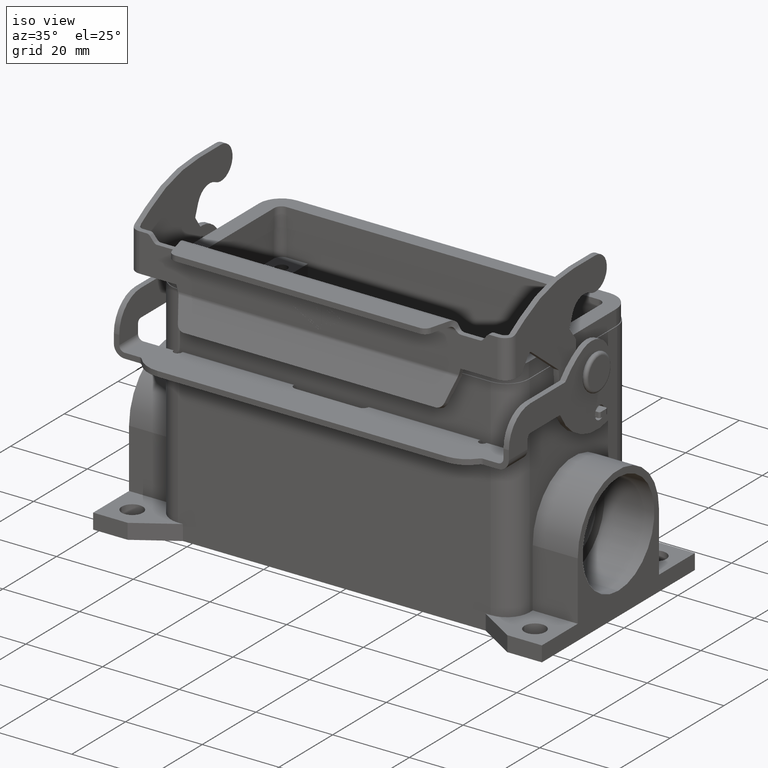
[diagram: clean part render]
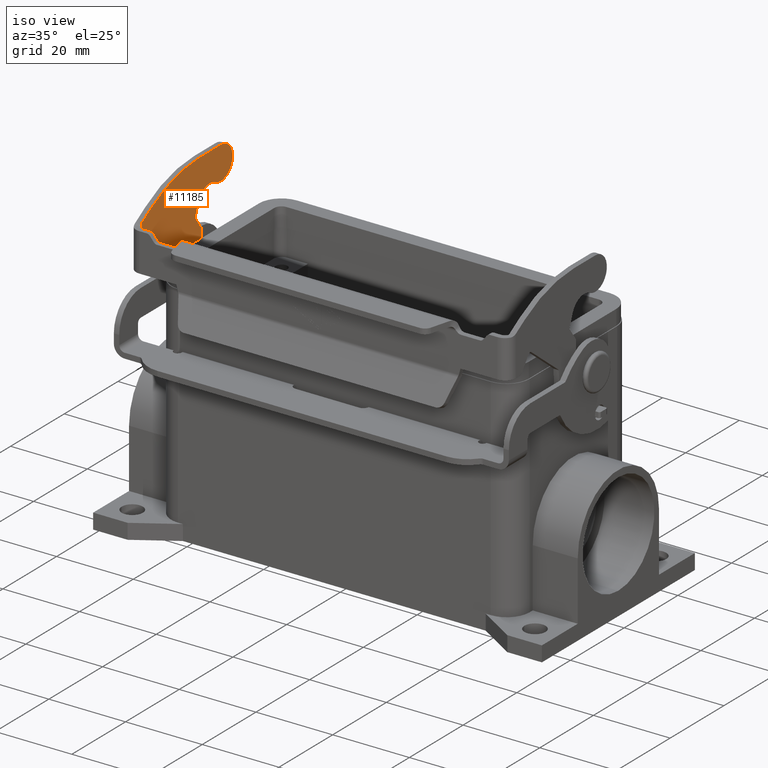
[diagram: same view with one face highlighted and labeled with its STEP entity id]
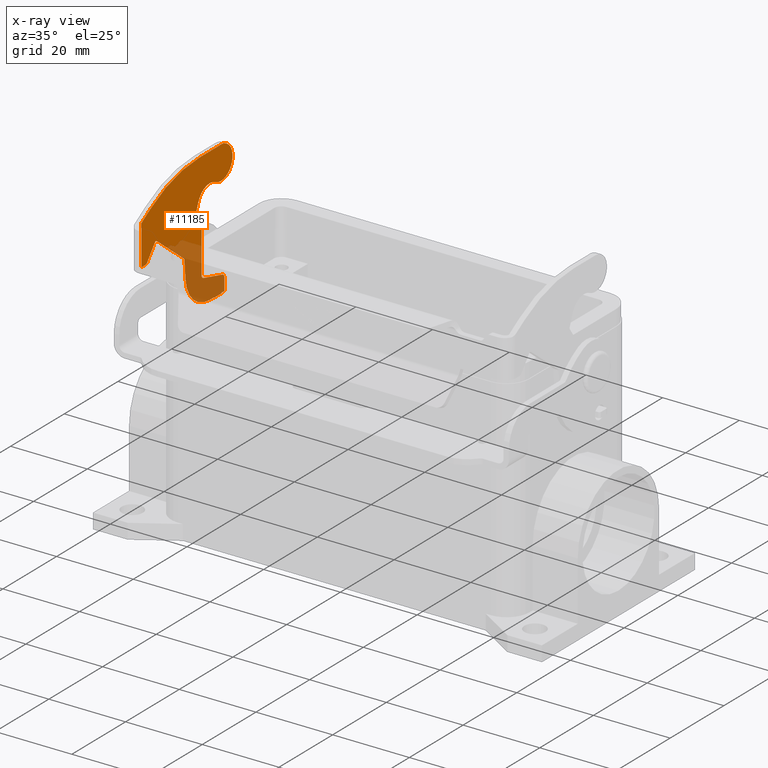
[diagram: x-ray of the same camera — body ghosted, the highlighted face saturated]
A machine part, iso view. The second image highlights one B-rep face of the part: STEP entity #11185.
The next image is the same camera in x-ray: the body ghosted, the highlighted face saturated — about 25% of this face is hidden behind the body in this view.
In plain terms, the highlighted planar face has unit normal (1, 0, 0).
Its self-contained STEP definition (entity closure, byte-faithful):
#8750=CARTESIAN_POINT('',(-48.100000000000009,6.342010229414635,24.462500000000006));
#8751=VERTEX_POINT('',#8750);
#8760=CARTESIAN_POINT('',(-48.100000000000016,2.178553132241669,16.937500000000000));
#8761=VERTEX_POINT('',#8760);
#8762=CARTESIAN_POINT('',(-48.100000000000009,4.260281680828153,20.700000000000003));
#8763=DIRECTION('',(-1.000000000000000,0.0,0.0));
#8764=DIRECTION('',(0.0,-0.484122918275926,-0.875000000000000));
#8765=AXIS2_PLACEMENT_3D('',#8762,#8763,#8764);
#8766=CIRCLE('',#8765,4.299999999999999);
#8767=EDGE_CURVE('',#8751,#8761,#8766,.T.);
#10685=CARTESIAN_POINT('',(-48.100000000000009,4.500000000000000,-10.137654915007420));
#10686=VERTEX_POINT('',#10685);
#10694=CARTESIAN_POINT('',(-48.100000000000009,1.600000000000001,-10.137654915007426));
#10695=VERTEX_POINT('',#10694);
#10696=CARTESIAN_POINT('',(-48.100000000000009,1.600000000000001,-10.137654915007426));
#10697=DIRECTION('',(0.0,1.0,0.0));
#10698=VECTOR('',#10697,2.900000000000000);
#10699=LINE('',#10696,#10698);
#10700=EDGE_CURVE('',#10695,#10686,#10699,.T.);
#10953=CARTESIAN_POINT('',(-48.100000000000016,-29.717557851726738,9.745694900991392));
#10954=DIRECTION('',(1.0,0.0,0.0));
#10955=DIRECTION('',(0.0,0.0,-1.0));
#10956=AXIS2_PLACEMENT_3D('',#10953,#10954,#10955);
#10957=PLANE('',#10956);
#10958=ORIENTED_EDGE('',*,*,#10700,.T.);
#10959=CARTESIAN_POINT('',(-48.100000000000016,4.500000000000000,-10.0));
#10960=VERTEX_POINT('',#10959);
#10961=CARTESIAN_POINT('',(-48.100000000000016,4.500000000000000,-10.0));
#10962=DIRECTION('',(0.0,0.0,-1.0));
#10963=VECTOR('',#10962,0.137654915007420);
#10964=LINE('',#10961,#10963);
#10965=EDGE_CURVE('',#10960,#10686,#10964,.T.);
#10966=ORIENTED_EDGE('',*,*,#10965,.F.);
#10967=CARTESIAN_POINT('',(-48.100000000000016,5.300000000000001,-10.0));
#10968=VERTEX_POINT('',#10967);
#10969=CARTESIAN_POINT('',(-48.100000000000016,5.300000000000001,-10.0));
#10970=DIRECTION('',(0.0,-1.0,0.0));
#10971=VECTOR('',#10970,0.800000000000001);
#10972=LINE('',#10969,#10971);
#10973=EDGE_CURVE('',#10968,#10960,#10972,.T.);
#10974=ORIENTED_EDGE('',*,*,#10973,.F.);
#10975=CARTESIAN_POINT('',(-48.100000000000016,5.500000000000000,-9.800000000000001));
#10976=VERTEX_POINT('',#10975);
#10977=CARTESIAN_POINT('',(-48.100000000000009,5.299999999999999,-9.799999999999999));
#10978=DIRECTION('',(-1.0,0.0,0.0));
#10979=DIRECTION('',(0.0,0.0,-1.0));
#10980=AXIS2_PLACEMENT_3D('',#10977,#10978,#10979);
#10981=CIRCLE('',#10980,0.200000000000001);
#10982=EDGE_CURVE('',#10976,#10968,#10981,.T.);
#10983=ORIENTED_EDGE('',*,*,#10982,.F.);
#10984=CARTESIAN_POINT('',(-48.100000000000016,5.500000000000002,-6.812222111622458));
#10985=VERTEX_POINT('',#10984);
#10986=CARTESIAN_POINT('',(-48.100000000000016,5.500000000000002,-6.812222111622458));
#10987=DIRECTION('',(0.0,0.0,-1.0));
#10988=VECTOR('',#10987,2.987777888377543);
#10989=LINE('',#10986,#10988);
#10990=EDGE_CURVE('',#10985,#10976,#10989,.T.);
#10991=ORIENTED_EDGE('',*,*,#10990,.F.);
#10992=CARTESIAN_POINT('',(-48.100000000000016,4.758819045102520,-5.846296285333391));
#10993=VERTEX_POINT('',#10992);
#10994=CARTESIAN_POINT('',(-48.100000000000009,4.500000000000001,-6.812222111622458));
#10995=DIRECTION('',(-1.0,0.0,0.0));
#10996=DIRECTION('',(0.0,1.0,0.0));
#10997=AXIS2_PLACEMENT_3D('',#10994,#10995,#10996);
#10998=CIRCLE('',#10997,1.0);
#10999=EDGE_CURVE('',#10993,#10985,#10998,.T.);
#11000=ORIENTED_EDGE('',*,*,#10999,.F.);
#11001=CARTESIAN_POINT('',(-48.100000000000016,-2.258819045102521,-3.965925826289068));
#11002=VERTEX_POINT('',#11001);
#11003=CARTESIAN_POINT('',(-48.100000000000016,-2.258819045102521,-3.965925826289068));
#11004=DIRECTION('',(0.0,0.965925826289068,-0.258819045102520));
#11005=VECTOR('',#11004,7.265193557527783);
#11006=LINE('',#11003,#11005);
#11007=EDGE_CURVE('',#11002,#10993,#11006,.T.);
#11008=ORIENTED_EDGE('',*,*,#11007,.F.);
#11009=CARTESIAN_POINT('',(-48.100000000000016,-3.000000000000000,-2.999999999999998));
#11010=VERTEX_POINT('',#11009);
#11011=CARTESIAN_POINT('',(-48.100000000000009,-2.000000000000000,-2.999999999999998));
#11012=DIRECTION('',(1.0,0.0,0.0));
#11013=DIRECTION('',(0.0,1.0,0.0));
#11014=AXIS2_PLACEMENT_3D('',#11011,#11012,#11013);
#11015=CIRCLE('',#11014,1.0);
#11016=EDGE_CURVE('',#11010,#11002,#11015,.T.);
#11017=ORIENTED_EDGE('',*,*,#11016,.F.);
#11018=CARTESIAN_POINT('',(-48.100000000000016,-3.000000000000000,8.0));
#11019=VERTEX_POINT('',#11018);
#11020=CARTESIAN_POINT('',(-48.100000000000016,-3.000000000000000,8.0));
#11021=DIRECTION('',(0.0,0.0,-1.0));
#11022=VECTOR('',#11021,10.999999999999998);
#11023=LINE('',#11020,#11022);
#11024=EDGE_CURVE('',#11019,#11010,#11023,.T.);
#11025=ORIENTED_EDGE('',*,*,#11024,.F.);
#11026=CARTESIAN_POINT('',(-48.100000000000016,-5.228877936336266,11.215134530698654));
#11027=VERTEX_POINT('',#11026);
#11028=CARTESIAN_POINT('',(-48.100000000000016,-5.228877936336266,11.215134530698654));
#11029=DIRECTION('',(0.0,0.569730938602697,-0.821831282927883));
#11030=VECTOR('',#11029,3.912158854849514);
#11031=LINE('',#11028,#11030);
#11032=EDGE_CURVE('',#11027,#11019,#11031,.T.);
#11033=ORIENTED_EDGE('',*,*,#11032,.F.);
#11034=CARTESIAN_POINT('',(-48.100000000000016,-5.287001955669658,11.673210267014177));
#11035=VERTEX_POINT('',#11034);
#11036=CARTESIAN_POINT('',(-48.100000000000009,-4.817962294872324,11.500000000000004));
#11037=DIRECTION('',(1.0,0.0,0.0));
#11038=DIRECTION('',(0.0,0.938079321594669,-0.346420534028349));
#11039=AXIS2_PLACEMENT_3D('',#11036,#11037,#11038);
#11040=CIRCLE('',#11039,0.500000000000000);
#11041=EDGE_CURVE('',#11035,#11027,#11040,.T.);
#11042=ORIENTED_EDGE('',*,*,#11041,.F.);
#11043=CARTESIAN_POINT('',(-48.100000000000016,-4.221356947176012,14.558892403127569));
#11044=VERTEX_POINT('',#11043);
#11045=CARTESIAN_POINT('',(-48.100000000000016,-4.221356947176012,14.558892403127569));
#11046=DIRECTION('',(0.0,-0.346420534028348,-0.938079321594669));
#11047=VECTOR('',#11046,3.076160053510118);
#11048=LINE('',#11045,#11047);
#11049=EDGE_CURVE('',#11044,#11035,#11048,.T.);
#11050=ORIENTED_EDGE('',*,*,#11049,.F.);
#11051=CARTESIAN_POINT('',(-48.100000000000009,0.0,13.0));
#11052=DIRECTION('',(1.000000000000000,0.0,0.0));
#11053=DIRECTION('',(0.0,-0.484122918275927,-0.875000000000000));
#11054=AXIS2_PLACEMENT_3D('',#11051,#11052,#11053);
#11055=CIRCLE('',#11054,4.500000000000000);
#11056=EDGE_CURVE('',#8761,#11044,#11055,.T.);
#11057=ORIENTED_EDGE('',*,*,#11056,.F.);
#11058=ORIENTED_EDGE('',*,*,#8767,.F.);
#11059=CARTESIAN_POINT('',(-48.100000000000016,4.260281680828153,25.000000000000007));
#11060=VERTEX_POINT('',#11059);
#11061=CARTESIAN_POINT('',(-48.100000000000009,4.260281680828153,20.700000000000003));
#11062=DIRECTION('',(-1.000000000000000,0.0,0.0));
#11063=DIRECTION('',(0.0,-0.484122918275926,-0.875000000000000));
#11064=AXIS2_PLACEMENT_3D('',#11061,#11062,#11063);
#11065=CIRCLE('',#11064,4.299999999999999);
#11066=EDGE_CURVE('',#11060,#8751,#11065,.T.);
#11067=ORIENTED_EDGE('',*,*,#11066,.F.);
#11068=CARTESIAN_POINT('',(-48.100000000000016,-3.739718319171848,25.000000000000007));
#11069=VERTEX_POINT('',#11068);
#11070=CARTESIAN_POINT('',(-48.100000000000016,-3.739718319171848,25.000000000000007));
#11071=DIRECTION('',(0.0,1.0,0.0));
#11072=VECTOR('',#11071,8.0);
#11073=LINE('',#11070,#11072);
#11074=EDGE_CURVE('',#11069,#11060,#11073,.T.);
#11075=ORIENTED_EDGE('',*,*,#11074,.F.);
#11076=CARTESIAN_POINT('',(-48.100000000000016,-22.025445526428999,19.843461268790108));
#11077=VERTEX_POINT('',#11076);
#11078=CARTESIAN_POINT('',(-48.100000000000009,-3.739718319171848,-9.999999999999996));
#11079=DIRECTION('',(-1.0,0.0,0.0));
#11080=DIRECTION('',(0.0,0.0,1.0));
#11081=AXIS2_PLACEMENT_3D('',#11078,#11079,#11080);
#11082=CIRCLE('',#11081,35.0);
#11083=EDGE_CURVE('',#11077,#11069,#11082,.T.);
#11084=ORIENTED_EDGE('',*,*,#11083,.F.);
#11085=CARTESIAN_POINT('',(-48.100000000000009,-25.366637302590753,17.796241584191456));
#11086=VERTEX_POINT('',#11085);
#11087=CARTESIAN_POINT('',(-48.100000000000009,-25.366637302590753,17.796241584191456));
#11088=DIRECTION('',(-1.813301E-015,0.852670321965433,0.522449348778774));
#11089=VECTOR('',#11088,3.918503658553752);
#11090=LINE('',#11087,#11089);
#11091=EDGE_CURVE('',#11086,#11077,#11090,.T.);
#11092=ORIENTED_EDGE('',*,*,#11091,.F.);
#11093=CARTESIAN_POINT('',(-48.100000000000009,-25.366637302590746,7.360985334995052));
#11094=VERTEX_POINT('',#11093);
#11095=CARTESIAN_POINT('',(-48.100000000000009,-25.366637302590753,17.796241584191456));
#11096=DIRECTION('',(0.0,0.0,-1.0));
#11097=VECTOR('',#11096,10.435256249196405);
#11098=LINE('',#11095,#11097);
#11099=EDGE_CURVE('',#11086,#11094,#11098,.T.);
#11100=ORIENTED_EDGE('',*,*,#11099,.T.);
#11101=CARTESIAN_POINT('',(-48.100000000000016,-24.000000000000004,7.360985334995052));
#11102=VERTEX_POINT('',#11101);
#11103=CARTESIAN_POINT('',(-48.100000000000016,-24.000000000000004,7.360985334995052));
#11104=DIRECTION('',(0.0,-1.0,0.0));
#11105=VECTOR('',#11104,1.366637302590743);
#11106=LINE('',#11103,#11105);
#11107=EDGE_CURVE('',#11102,#11094,#11106,.T.);
#11108=ORIENTED_EDGE('',*,*,#11107,.F.);
#11109=CARTESIAN_POINT('',(-48.100000000000016,-23.215700473814319,7.740602990609832));
#11110=VERTEX_POINT('',#11109);
#11111=CARTESIAN_POINT('',(-48.100000000000009,-24.000000000000004,8.360985334995053));
#11112=DIRECTION('',(-1.0,0.0,0.0));
#11113=DIRECTION('',(0.0,0.0,-1.0));
#11114=AXIS2_PLACEMENT_3D('',#11111,#11112,#11113);
#11115=CIRCLE('',#11114,1.0);
#11116=EDGE_CURVE('',#11110,#11102,#11115,.T.);
#11117=ORIENTED_EDGE('',*,*,#11116,.F.);
#11118=CARTESIAN_POINT('',(-48.100000000000016,-20.392149763092849,11.310191172192617));
#11119=VERTEX_POINT('',#11118);
#11120=CARTESIAN_POINT('',(-48.100000000000016,-20.392149763092849,11.310191172192617));
#11121=DIRECTION('',(0.0,-0.620382344385223,-0.784299526185688));
#11122=VECTOR('',#11121,4.551307328901358);
#11123=LINE('',#11120,#11122);
#11124=EDGE_CURVE('',#11119,#11110,#11123,.T.);
#11125=ORIENTED_EDGE('',*,*,#11124,.F.);
#11126=CARTESIAN_POINT('',(-48.100000000000016,-19.689808827807390,11.392149763092847));
#11127=VERTEX_POINT('',#11126);
#11128=CARTESIAN_POINT('',(-48.100000000000009,-20.0,11.000000000000004));
#11129=DIRECTION('',(1.0,0.0,0.0));
#11130=DIRECTION('',(0.0,-0.620382344385222,-0.784299526185688));
#11131=AXIS2_PLACEMENT_3D('',#11128,#11129,#11130);
#11132=CIRCLE('',#11131,0.500000000000000);
#11133=EDGE_CURVE('',#11127,#11119,#11132,.T.);
#11134=ORIENTED_EDGE('',*,*,#11133,.F.);
#11135=CARTESIAN_POINT('',(-48.100000000000016,-9.576051938572887,3.392149763092847));
#11136=VERTEX_POINT('',#11135);
#11137=CARTESIAN_POINT('',(-48.100000000000016,-9.576051938572887,3.392149763092847));
#11138=DIRECTION('',(0.0,-0.784299526185688,0.620382344385223));
#11139=VECTOR('',#11138,12.895273491265641);
#11140=LINE('',#11137,#11139);
#11141=EDGE_CURVE('',#11136,#11127,#11140,.T.);
#11142=ORIENTED_EDGE('',*,*,#11141,.F.);
#11143=CARTESIAN_POINT('',(-48.100000000000016,-9.388145761719624,3.043577871373832));
#11144=VERTEX_POINT('',#11143);
#11145=CARTESIAN_POINT('',(-48.100000000000009,-9.886243110765498,3.000000000000003));
#11146=DIRECTION('',(1.000000000000000,0.0,0.0));
#11147=DIRECTION('',(0.0,-0.996194698091746,-0.087155742747659));
#11148=AXIS2_PLACEMENT_3D('',#11145,#11146,#11147);
#11149=CIRCLE('',#11148,0.500000000000000);
#11150=EDGE_CURVE('',#11144,#11136,#11149,.T.);
#11151=ORIENTED_EDGE('',*,*,#11150,.F.);
#11152=CARTESIAN_POINT('',(-48.100000000000016,-8.965752282825712,-1.784401684728924));
#11153=VERTEX_POINT('',#11152);
#11154=CARTESIAN_POINT('',(-48.100000000000016,-8.965752282825712,-1.784401684728924));
#11155=DIRECTION('',(0.0,-0.087155742747658,0.996194698091746));
#11156=VECTOR('',#11155,4.846421653669671);
#11157=LINE('',#11154,#11156);
#11158=EDGE_CURVE('',#11153,#11144,#11157,.T.);
#11159=ORIENTED_EDGE('',*,*,#11158,.F.);
#11160=CARTESIAN_POINT('',(-48.100000000000016,0.0,-10.0));
#11161=VERTEX_POINT('',#11160);
#11162=CARTESIAN_POINT('',(-48.100000000000009,-5.551115E-016,-1.000000000000000));
#11163=DIRECTION('',(-1.0,0.0,0.0));
#11164=DIRECTION('',(0.0,-0.996194698091746,-0.087155742747658));
#11165=AXIS2_PLACEMENT_3D('',#11162,#11163,#11164);
#11166=CIRCLE('',#11165,9.0);
#11167=EDGE_CURVE('',#11161,#11153,#11166,.T.);
#11168=ORIENTED_EDGE('',*,*,#11167,.F.);
#11169=CARTESIAN_POINT('',(-48.100000000000016,1.600000000000001,-10.0));
#11170=VERTEX_POINT('',#11169);
#11171=CARTESIAN_POINT('',(-48.100000000000016,1.600000000000001,-10.0));
#11172=DIRECTION('',(0.0,-1.0,0.0));
#11173=VECTOR('',#11172,1.600000000000001);
#11174=LINE('',#11171,#11173);
#11175=EDGE_CURVE('',#11170,#11161,#11174,.T.);
#11176=ORIENTED_EDGE('',*,*,#11175,.F.);
#11177=CARTESIAN_POINT('',(-48.100000000000009,1.600000000000001,-10.137654915007426));
#11178=DIRECTION('',(0.0,0.0,1.0));
#11179=VECTOR('',#11178,0.137654915007426);
#11180=LINE('',#11177,#11179);
#11181=EDGE_CURVE('',#10695,#11170,#11180,.T.);
#11182=ORIENTED_EDGE('',*,*,#11181,.F.);
#11183=EDGE_LOOP('',(#10958,#10966,#10974,#10983,#10991,#11000,#11008,#11017,#11025,#11033,#11042,#11050,#11057,#11058,#11067,#11075,#11084,#11092,#11100,#11108,#11117,#11125,#11134,#11142,#11151,#11159,#11168,#11176,#11182));
#11184=FACE_OUTER_BOUND('',#11183,.T.);
#11185=ADVANCED_FACE('',(#11184),#10957,.T.);